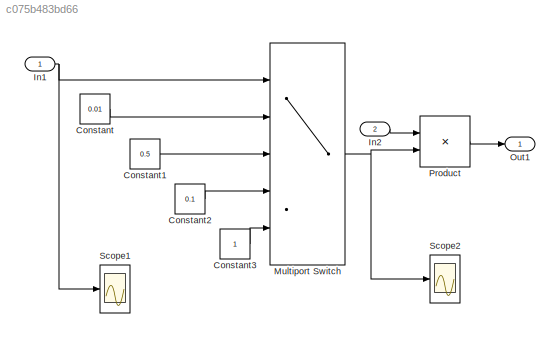
MODEL slx_c075b483bd66
KIND model
CONFIG AbsTol = auto
CONFIG FixedStep = 0.1
CONFIG MaxStep = auto
CONFIG MinStep = auto
CONFIG RelTol = 1e-3
CONFIG SampleTimeConstraint = Unconstrained
CONFIG Solver = FixedStepDiscrete
CONFIG SolverMode = Auto
CONFIG SolverName = FixedStepDiscrete
CONFIG StartTime = 0.0
CONFIG StopTime = 10.0
BLOCK [Constant] Constant
  Value = 0.01
BLOCK [Constant] Constant1
  Value = 0.5
BLOCK [Constant] Constant2
  Value = 0.1
BLOCK [Constant] Constant3
BLOCK [Inport] In1
  IconDisplay = Port number
BLOCK [Inport] In2
  IconDisplay = Port number
  Port = 2
BLOCK [MultiPortSwitch] Multiport Switch
  DataPortForDefault = Additional data port
  DataPortIndices = {[3,5],0,18}
  DataPortOrder = Specify indices
  InputSameDT = off
  Ports = [5, 1]
  SaturateOnIntegerOverflow = off
BLOCK [Outport] Out1
  IconDisplay = Port number
BLOCK [Product] Product
  InputSameDT = off
  OutDataTypeStr = Inherit: Inherit via internal rule
  Ports = [2, 1]
  SaturateOnIntegerOverflow = off
BLOCK [Scope] Scope1
  DataFormat = StructureWithTime
  Decimation = 10
  Floating = off
  LimitDataPoints = off
  NumInputPorts = 1
  Ports = [1]
  SampleTime = 0
  SaveName = VI2
  SaveToWorkspace = on
  TimeRange = 0.1
  YMin = -2
  ZoomMode = yonly
BLOCK [Scope] Scope2
  DataFormat = StructureWithTime
  Decimation = 10
  Floating = off
  LimitDataPoints = off
  NumInputPorts = 1
  Ports = [1]
  SampleTime = 0
  SaveName = VI
  SaveToWorkspace = on
  TimeRange = 0.1
  YMin = -2
  ZoomMode = yonly
LINE Constant1:1 -> Multiport Switch:3
LINE Constant2:1 -> Multiport Switch:4
LINE Constant3:1 -> Multiport Switch:5
LINE Constant:1 -> Multiport Switch:2
NET In1:1 -> Multiport Switch:1, Scope1:1
LINE In2:1 -> Product:1
NET Multiport Switch:1 -> Product:2, Scope2:1
LINE Product:1 -> Out1:1
note: NET lines group one-source signal fan-out (src -> all destinations, sorted); 1:1 wires keep LINE
